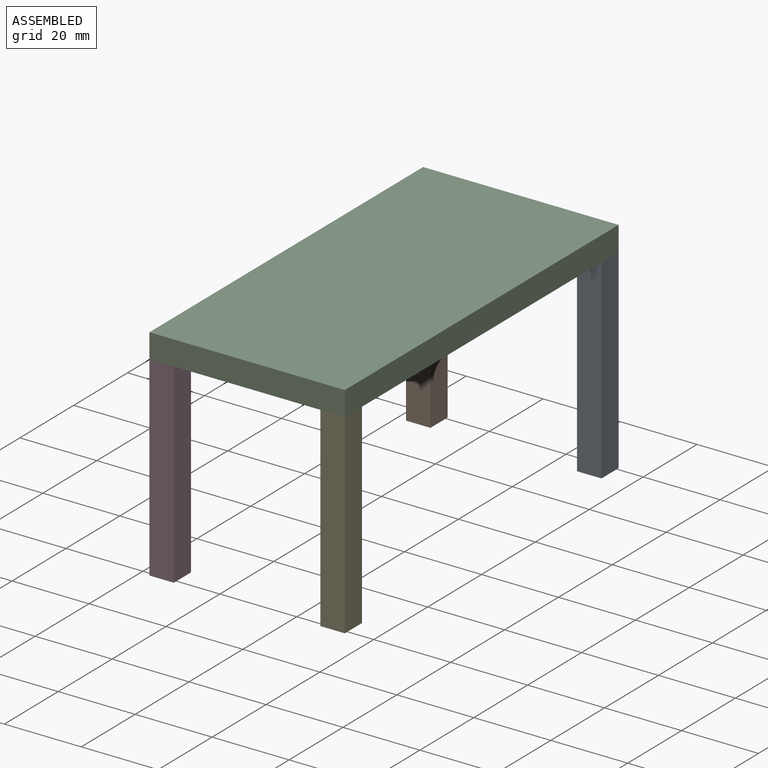
[diagram: assembled view]
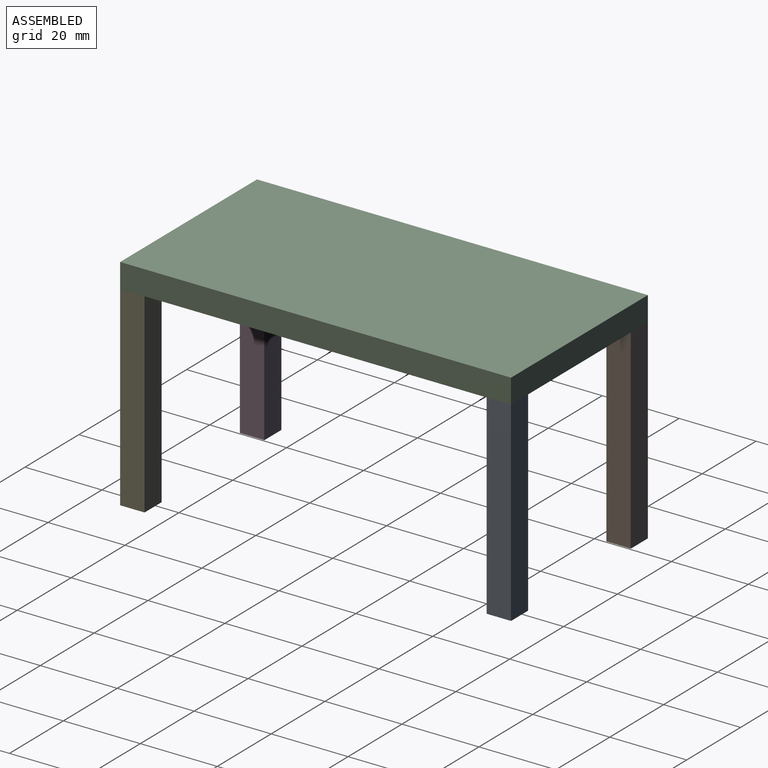
[diagram: assembled view, second angle]
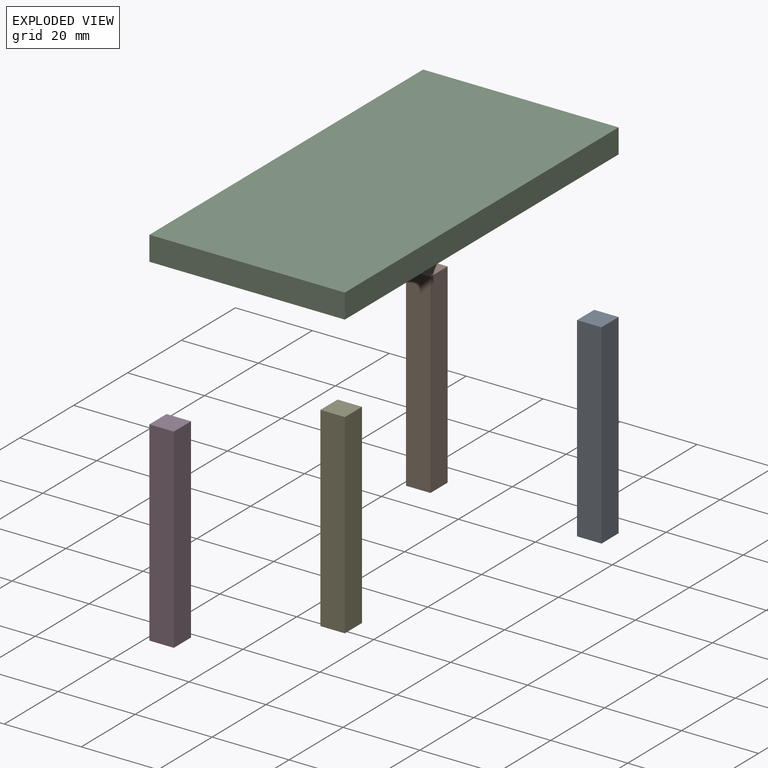
[diagram: exploded view]
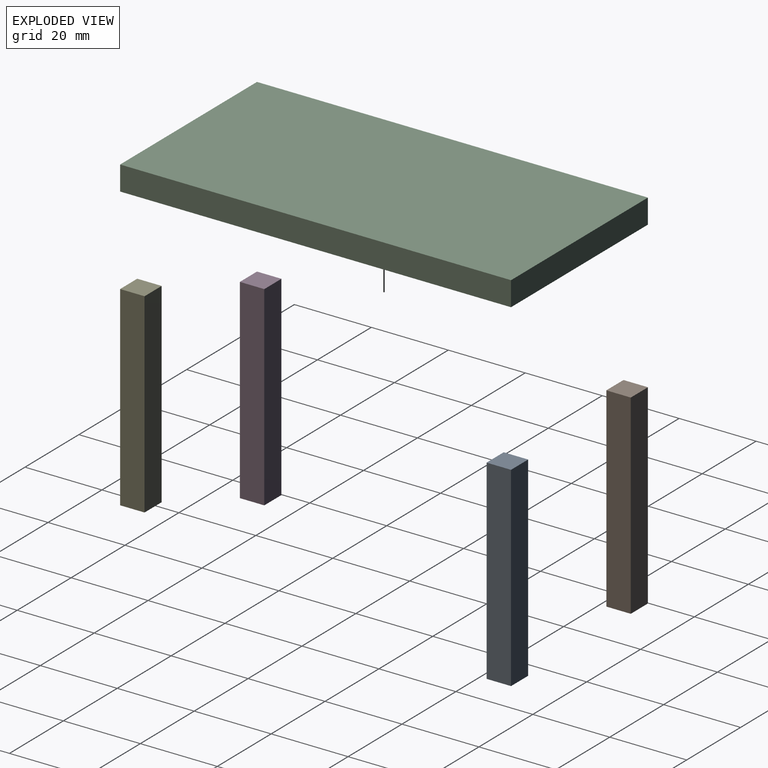
[diagram: exploded view, second angle]
ASSEMBLY  parts=5 mates=4
PART A: 6 faces, bbox 6.4x6.4x50.8 mm
  f0: plane 6.35x6.35mm, normal (0,0,1), area 40.3mm2, adj f1,f3,f4,f5
  f1: plane 50.8x6.35mm, normal (-1,0,0), area 322.6mm2, adj f0,f2,f4,f5
  f2: plane 6.35x6.35mm, normal (0,0,-1), area 40.3mm2, adj f1,f3,f4,f5
  f3: plane 50.8x6.35mm, normal (1,0,0), area 322.6mm2, adj f0,f2,f4,f5
  f4: plane 50.8x6.35mm, normal (0,-1,0), area 322.6mm2, adj f0,f1,f2,f3
  f5: plane 50.8x6.35mm, normal (0,1,0), area 322.6mm2, adj f0,f1,f2,f3
PART B: same geometry as A
PART C: 6 faces, bbox 50.8x101.6x6.4 mm
  f0: plane 50.8x6.35mm, normal (0,1,0), area 322.6mm2, adj f1,f3,f4,f5
  f1: plane 101.6x6.35mm, normal (-1,0,0), area 645.2mm2, adj f0,f2,f4,f5
  f2: plane 50.8x6.35mm, normal (0,-1,0), area 322.6mm2, adj f1,f3,f4,f5
  f3: plane 101.6x6.35mm, normal (1,0,0), area 645.2mm2, adj f0,f2,f4,f5
  f4: plane 101.6x50.8mm, normal (0,0,1), area 5161.3mm2, adj f0,f1,f2,f3
  f5: plane 101.6x50.8mm, normal (0,0,-1), area 5161.3mm2, adj f0,f1,f2,f3
PART D: same geometry as A
PART E: same geometry as A
PLACE A t=(140.77,70.39,-38.16)mm
PLACE B t=(96.32,70.39,-38.16)mm
PLACE C t=(69.45,22.86,-16.18)mm
PLACE D t=(96.32,-24.86,-38.16)mm
PLACE E t=(140.77,-24.86,-38.16)mm
MATE planar E.f0 <-> C.f5  axis (0,0,1) through (74.35,-31.21,-16.18)mm
MATE planar B.f0 <-> C.f5  axis (0,0,1) through (23.55,70.39,-16.18)mm
MATE planar D.f0 <-> C.f5  axis (0,0,1) through (23.55,-31.21,-16.18)mm
MATE planar A.f0 <-> C.f5  axis (0,0,1) through (74.35,70.39,-16.18)mm
